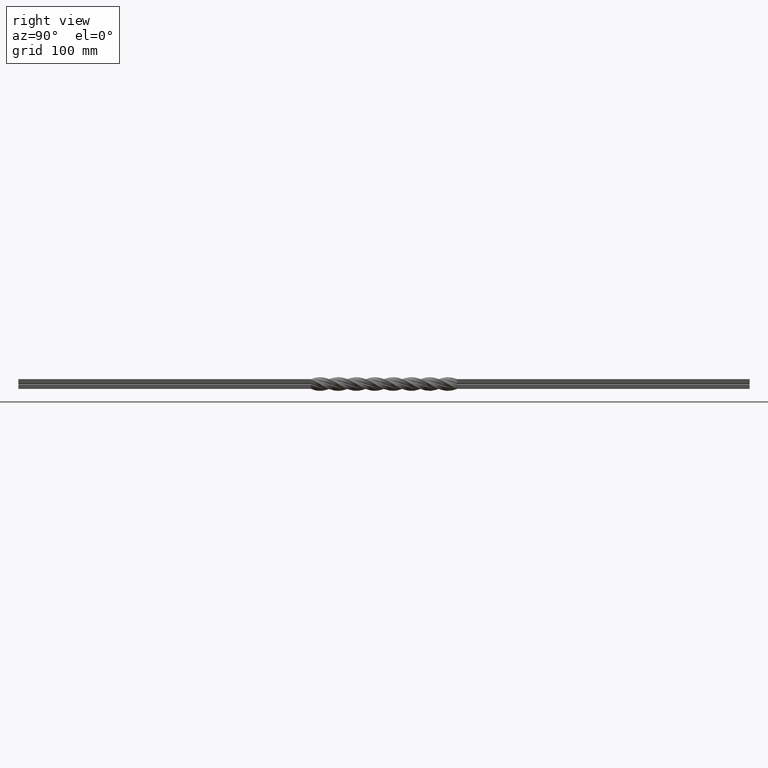
[diagram: clean part render]
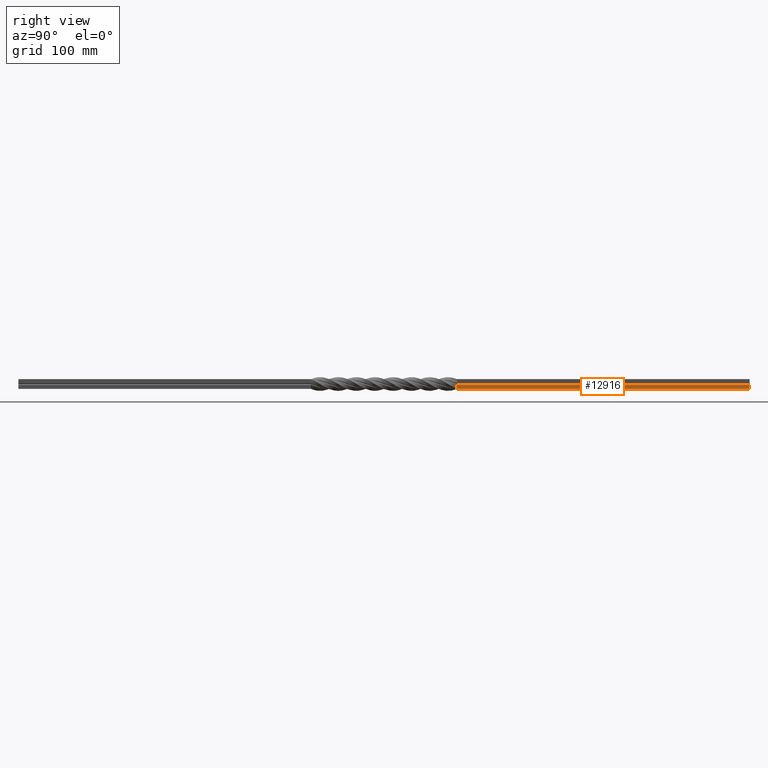
[diagram: same view with one face highlighted and labeled with its STEP entity id]
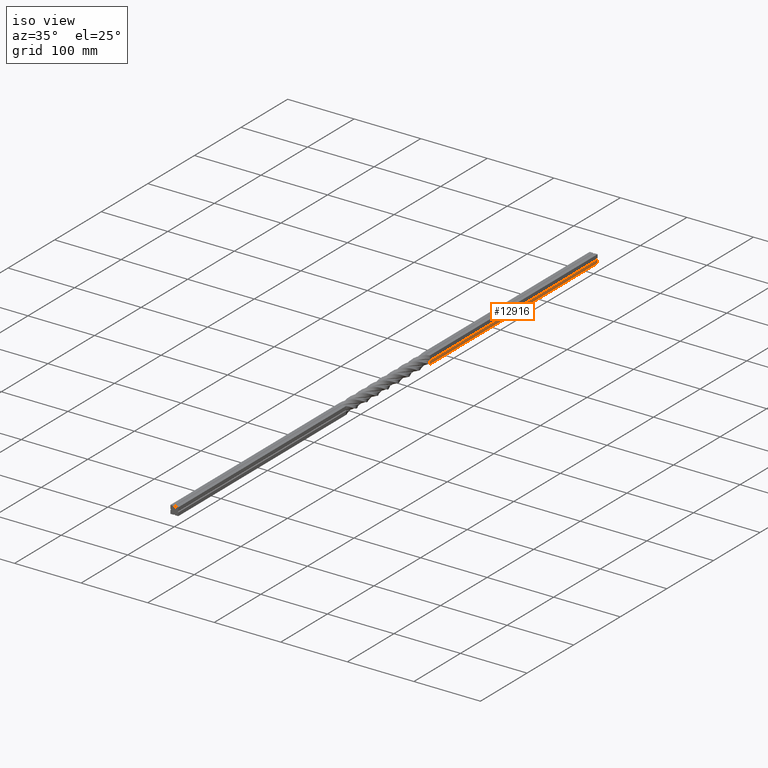
[diagram: same view with one face highlighted and labeled with its STEP entity id]
A machine part, right view. The second image highlights one B-rep face of the part: STEP entity #12916.
A second angle (iso view) of the same face is appended — the face is thin or edge-on in the first view.
In plain terms, the highlighted planar face has unit normal (1, 0, -0).
Its self-contained STEP definition (entity closure, byte-faithful):
#63 = VERTEX_POINT ( 'NONE', #12027 ) ;
#125 = LINE ( 'NONE', #6271, #7834 ) ;
#357 = VERTEX_POINT ( 'NONE', #7542 ) ;
#643 = ORIENTED_EDGE ( 'NONE', *, *, #12288, .F. ) ;
#812 = VERTEX_POINT ( 'NONE', #13412 ) ;
#932 = LINE ( 'NONE', #6451, #13218 ) ;
#1003 = ORIENTED_EDGE ( 'NONE', *, *, #12317, .F. ) ;
#1254 = DIRECTION ( 'NONE',  ( -0.000000000000000000, -1.000000000000000000, -0.000000000000000000 ) ) ;
#2023 = CARTESIAN_POINT ( 'NONE',  ( 6.000000000000001776, 900.0000000000000000, -6.000000000000000888 ) ) ;
#3460 = CARTESIAN_POINT ( 'NONE',  ( 6.000000000000006217, 900.0000000000000000, -0.9999999999999893419 ) ) ;
#4254 = DIRECTION ( 'NONE',  ( 8.673617379884015751E-16, -6.410137294958977184E-19, 1.000000000000000000 ) ) ;
#5396 = CARTESIAN_POINT ( 'NONE',  ( 6.000000000000001776, 540.0000000000000000, -6.000000000000000888 ) ) ;
#5466 = VECTOR ( 'NONE', #10816, 1000.000000000000000 ) ;
#5611 = ORIENTED_EDGE ( 'NONE', *, *, #5618, .T. ) ;
#5618 = EDGE_CURVE ( 'NONE', #357, #63, #125, .T. ) ;
#5869 = AXIS2_PLACEMENT_3D ( 'NONE', #2023, #10409, #11568 ) ;
#6271 = CARTESIAN_POINT ( 'NONE',  ( 6.000000000000001776, 900.0000000000000000, -6.000000000000000888 ) ) ;
#6451 = CARTESIAN_POINT ( 'NONE',  ( 6.000000000000001776, 900.0000000000000000, -6.000000000000000888 ) ) ;
#6525 = VERTEX_POINT ( 'NONE', #12476 ) ;
#7122 = LINE ( 'NONE', #5396, #9098 ) ;
#7146 = DIRECTION ( 'NONE',  ( 8.673617379884015751E-16, 0.000000000000000000, 1.000000000000000000 ) ) ;
#7542 = CARTESIAN_POINT ( 'NONE',  ( 6.000000000000001776, 900.0000000000000000, -6.000000000000000888 ) ) ;
#7624 = EDGE_CURVE ( 'NONE', #63, #812, #12879, .T. ) ;
#7834 = VECTOR ( 'NONE', #7146, 1000.000000000000000 ) ;
#9098 = VECTOR ( 'NONE', #4254, 1000.000000000000000 ) ;
#9473 = PLANE ( 'NONE',  #5869 ) ;
#9823 = EDGE_LOOP ( 'NONE', ( #1003, #643, #5611, #10020 ) ) ;
#10020 = ORIENTED_EDGE ( 'NONE', *, *, #7624, .T. ) ;
#10409 = DIRECTION ( 'NONE',  ( 1.000000000000000000, 0.000000000000000000, -8.673617379884015751E-16 ) ) ;
#10816 = DIRECTION ( 'NONE',  ( -0.000000000000000000, -1.000000000000000000, -0.000000000000000000 ) ) ;
#11037 = FACE_OUTER_BOUND ( 'NONE', #9823, .T. ) ;
#11568 = DIRECTION ( 'NONE',  ( -8.673617379884015751E-16, 0.000000000000000000, -1.000000000000000000 ) ) ;
#12027 = CARTESIAN_POINT ( 'NONE',  ( 6.000000000000006217, 900.0000000000000000, -0.9999999999999893419 ) ) ;
#12288 = EDGE_CURVE ( 'NONE', #357, #6525, #932, .T. ) ;
#12317 = EDGE_CURVE ( 'NONE', #6525, #812, #7122, .T. ) ;
#12476 = CARTESIAN_POINT ( 'NONE',  ( 6.000000000000001776, 540.0000000000000000, -6.000000000000000888 ) ) ;
#12879 = LINE ( 'NONE', #3460, #5466 ) ;
#12916 = ADVANCED_FACE ( 'NONE', ( #11037 ), #9473, .T. ) ;
#13218 = VECTOR ( 'NONE', #1254, 1000.000000000000000 ) ;
#13412 = CARTESIAN_POINT ( 'NONE',  ( 6.000000000000006217, 540.0000000000000000, -0.9999999999999895639 ) ) ;